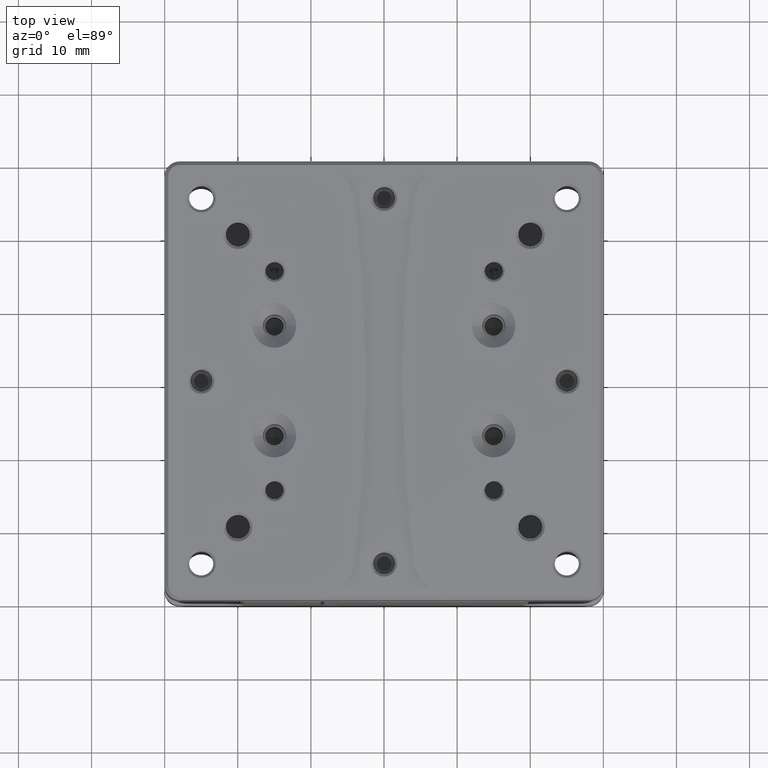
[diagram: clean part render]
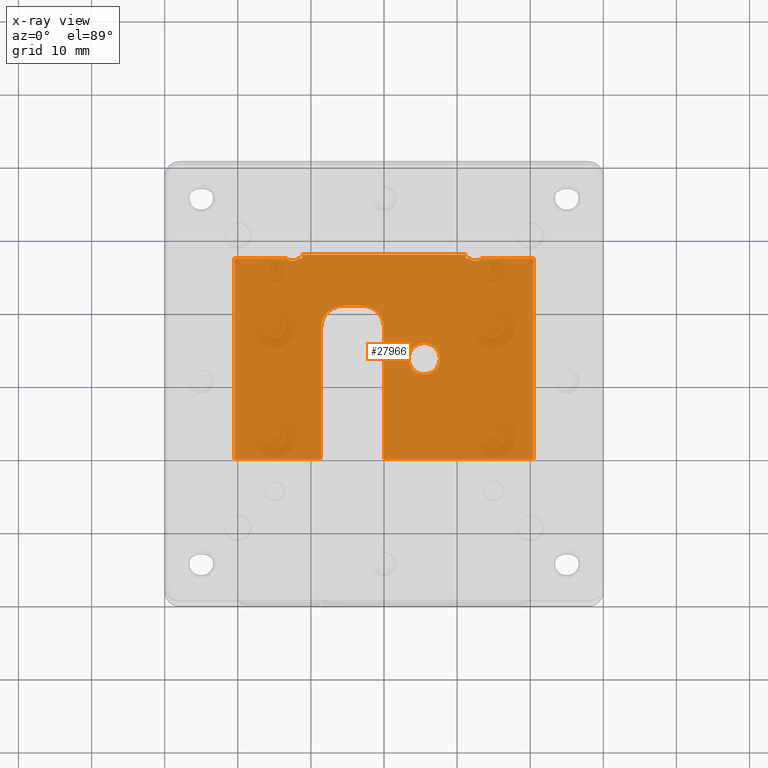
[diagram: x-ray — body ghosted, one internal face saturated and labeled with its STEP entity id]
A machine part, top view, then the same camera in x-ray: the body is ghosted and one INTERNAL B-rep face — a face not visible from any outside direction — is saturated and labeled: STEP entity #27966.
In plain terms, the highlighted planar face has unit normal (0, 0, 1).
Its self-contained STEP definition (entity closure, byte-faithful):
#202 = VERTEX_POINT ( 'NONE', #3311 ) ;
#1319 = VERTEX_POINT ( 'NONE', #31326 ) ;
#1616 = CIRCLE ( 'NONE', #3860, 1.250000000000002220 ) ;
#2000 = DIRECTION ( 'NONE',  ( -1.000000000000000000, 0.000000000000000000, 0.000000000000000000 ) ) ;
#2042 = VECTOR ( 'NONE', #24061, 1000.000000000000000 ) ;
#2183 = CARTESIAN_POINT ( 'NONE',  ( 12.50000000000000000, 18.39999999999999858, 0.05000000000000000278 ) ) ;
#2492 = LINE ( 'NONE', #34602, #3220 ) ;
#2694 = DIRECTION ( 'NONE',  ( 0.000000000000000000, -1.000000000000000000, 0.000000000000000000 ) ) ;
#2727 = CARTESIAN_POINT ( 'NONE',  ( 0.000000000000000000, -10.00000000000000000, 0.05000000000000000278 ) ) ;
#2833 = ORIENTED_EDGE ( 'NONE', *, *, #27133, .T. ) ;
#3220 = VECTOR ( 'NONE', #32641, 1000.000000000000000 ) ;
#3311 = CARTESIAN_POINT ( 'NONE',  ( 20.45456439427000106, 17.50000000000000000, 0.05000000000000000278 ) ) ;
#3348 = DIRECTION ( 'NONE',  ( 1.000000000000000000, 0.000000000000000000, 0.000000000000000000 ) ) ;
#3860 = AXIS2_PLACEMENT_3D ( 'NONE', #18830, #24122, #18314 ) ;
#3972 = LINE ( 'NONE', #8904, #5358 ) ;
#4125 = ORIENTED_EDGE ( 'NONE', *, *, #4710, .F. ) ;
#4218 = ORIENTED_EDGE ( 'NONE', *, *, #27868, .F. ) ;
#4306 = CARTESIAN_POINT ( 'NONE',  ( -11.20533679897999946, 18.00000000000000000, 0.05000000000000000278 ) ) ;
#4308 = ORIENTED_EDGE ( 'NONE', *, *, #6676, .T. ) ;
#4450 = CARTESIAN_POINT ( 'NONE',  ( 11.20533679897999946, 18.00000000000000000, 0.05000000000000000278 ) ) ;
#4710 = EDGE_CURVE ( 'NONE', #31947, #27770, #26141, .T. ) ;
#4799 = CARTESIAN_POINT ( 'NONE',  ( 20.45456439427000106, -10.00000000000000000, 0.05000000000000000278 ) ) ;
#5130 = EDGE_CURVE ( 'NONE', #33290, #12187, #9202, .T. ) ;
#5358 = VECTOR ( 'NONE', #8563, 1000.000000000000000 ) ;
#5444 = VERTEX_POINT ( 'NONE', #20287 ) ;
#5499 = CARTESIAN_POINT ( 'NONE',  ( 25.00000000000000000, -10.00000000000000000, 0.05000000000000000278 ) ) ;
#5727 = EDGE_CURVE ( 'NONE', #202, #7007, #3972, .T. ) ;
#5734 = VERTEX_POINT ( 'NONE', #22489 ) ;
#5861 = ORIENTED_EDGE ( 'NONE', *, *, #29692, .F. ) ;
#6250 = VERTEX_POINT ( 'NONE', #17342 ) ;
#6323 = CARTESIAN_POINT ( 'NONE',  ( -5.599999999999999645, 11.00000000000000000, 0.05000000000000000278 ) ) ;
#6445 = AXIS2_PLACEMENT_3D ( 'NONE', #28776, #15872, #10051 ) ;
#6676 = EDGE_CURVE ( 'NONE', #33290, #17107, #17302, .T. ) ;
#7007 = VERTEX_POINT ( 'NONE', #11767 ) ;
#7894 = VECTOR ( 'NONE', #31509, 1000.000000000000000 ) ;
#8035 = VERTEX_POINT ( 'NONE', #6323 ) ;
#8066 = EDGE_CURVE ( 'NONE', #5444, #12133, #22544, .T. ) ;
#8563 = DIRECTION ( 'NONE',  ( -1.000000000000000000, 0.000000000000000000, 0.000000000000000000 ) ) ;
#8664 = ORIENTED_EDGE ( 'NONE', *, *, #32987, .T. ) ;
#8720 = CIRCLE ( 'NONE', #31264, 1.250000000000002220 ) ;
#8786 = DIRECTION ( 'NONE',  ( -1.000000000000000000, 0.000000000000000000, 0.000000000000000000 ) ) ;
#8904 = CARTESIAN_POINT ( 'NONE',  ( 20.45456439427000106, 17.50000000000000000, 0.05000000000000000278 ) ) ;
#9003 = CARTESIAN_POINT ( 'NONE',  ( -3.000000000000000000, 11.00000000000000000, 0.05000000000000000278 ) ) ;
#9144 = DIRECTION ( 'NONE',  ( 0.000000000000000000, 0.000000000000000000, 1.000000000000000000 ) ) ;
#9202 = LINE ( 'NONE', #30906, #22077 ) ;
#9416 = VERTEX_POINT ( 'NONE', #9003 ) ;
#9638 = EDGE_CURVE ( 'NONE', #6250, #13404, #21654, .T. ) ;
#9673 = CARTESIAN_POINT ( 'NONE',  ( 11.20533679897999946, 17.50000000000000000, 0.05000000000000000278 ) ) ;
#10051 = DIRECTION ( 'NONE',  ( -1.000000000000000000, 0.000000000000000000, 0.000000000000000000 ) ) ;
#10058 = ORIENTED_EDGE ( 'NONE', *, *, #26471, .F. ) ;
#10154 = LINE ( 'NONE', #24264, #18889 ) ;
#10799 = PLANE ( 'NONE',  #31334 ) ;
#10997 = LINE ( 'NONE', #2727, #2042 ) ;
#11352 = EDGE_CURVE ( 'NONE', #9416, #8035, #23067, .T. ) ;
#11363 = ORIENTED_EDGE ( 'NONE', *, *, #26562, .T. ) ;
#11767 = CARTESIAN_POINT ( 'NONE',  ( 13.36746757863999946, 17.50000000000000000, 0.05000000000000000278 ) ) ;
#11781 = CARTESIAN_POINT ( 'NONE',  ( 20.45456439427000106, -10.00000000000000000, 0.05000000000000000278 ) ) ;
#11854 = DIRECTION ( 'NONE',  ( 0.000000000000000000, 1.000000000000000000, 0.000000000000000000 ) ) ;
#12133 = VERTEX_POINT ( 'NONE', #17189 ) ;
#12137 = CARTESIAN_POINT ( 'NONE',  ( -11.20533679897999946, 17.50000000000000000, 0.05000000000000000278 ) ) ;
#12187 = VERTEX_POINT ( 'NONE', #4306 ) ;
#12284 = CARTESIAN_POINT ( 'NONE',  ( 7.649999999999999467, 3.750000000000000000, 0.05000000000000000278 ) ) ;
#12381 = LINE ( 'NONE', #4450, #19236 ) ;
#13067 = ORIENTED_EDGE ( 'NONE', *, *, #22592, .T. ) ;
#13264 = CARTESIAN_POINT ( 'NONE',  ( 11.20533679897999946, 18.00000000000000000, 0.05000000000000000278 ) ) ;
#13404 = VERTEX_POINT ( 'NONE', #12284 ) ;
#13528 = CARTESIAN_POINT ( 'NONE',  ( -20.45456439427000106, 17.50000000000000000, 0.05000000000000000278 ) ) ;
#14353 = ORIENTED_EDGE ( 'NONE', *, *, #30066, .T. ) ;
#14467 = EDGE_CURVE ( 'NONE', #202, #31947, #17944, .T. ) ;
#15212 = DIRECTION ( 'NONE',  ( -1.000000000000000000, 0.000000000000000000, 0.000000000000000000 ) ) ;
#15268 = ORIENTED_EDGE ( 'NONE', *, *, #9638, .T. ) ;
#15744 = FACE_BOUND ( 'NONE', #19308, .T. ) ;
#15872 = DIRECTION ( 'NONE',  ( 0.000000000000000000, 0.000000000000000000, -1.000000000000000000 ) ) ;
#16082 = VECTOR ( 'NONE', #25668, 1000.000000000000000 ) ;
#16105 = ORIENTED_EDGE ( 'NONE', *, *, #8066, .F. ) ;
#16194 = EDGE_CURVE ( 'NONE', #27770, #34075, #10997, .T. ) ;
#16269 = VECTOR ( 'NONE', #2000, 1000.000000000000000 ) ;
#16804 = ORIENTED_EDGE ( 'NONE', *, *, #34745, .T. ) ;
#16824 = CARTESIAN_POINT ( 'NONE',  ( 5.500000000000000000, 3.750000000000000000, 0.05000000000000000278 ) ) ;
#17024 = LINE ( 'NONE', #33243, #29346 ) ;
#17107 = VERTEX_POINT ( 'NONE', #24740 ) ;
#17189 = CARTESIAN_POINT ( 'NONE',  ( -20.45456439427000106, -10.00000000000000000, 0.05000000000000000278 ) ) ;
#17302 = LINE ( 'NONE', #31389, #24496 ) ;
#17342 = CARTESIAN_POINT ( 'NONE',  ( 3.350000000000000089, 3.750000000000000000, 0.05000000000000000278 ) ) ;
#17360 = CIRCLE ( 'NONE', #20152, 3.000000000000000000 ) ;
#17907 = AXIS2_PLACEMENT_3D ( 'NONE', #16824, #25094, #19297 ) ;
#17944 = LINE ( 'NONE', #18295, #7894 ) ;
#18295 = CARTESIAN_POINT ( 'NONE',  ( 20.45456439427000106, 17.50000000000000000, 0.05000000000000000278 ) ) ;
#18314 = DIRECTION ( 'NONE',  ( 0.6939740629158990259, -0.7199999999999998623, 0.000000000000000000 ) ) ;
#18491 = EDGE_CURVE ( 'NONE', #1319, #12187, #12381, .T. ) ;
#18830 = CARTESIAN_POINT ( 'NONE',  ( -12.50000000000000000, 18.39999999999999858, 0.05000000000000000278 ) ) ;
#18889 = VECTOR ( 'NONE', #20932, 1000.000000000000000 ) ;
#19236 = VECTOR ( 'NONE', #15212, 1000.000000000000000 ) ;
#19297 = DIRECTION ( 'NONE',  ( 1.000000000000000000, 0.000000000000000000, 0.000000000000000000 ) ) ;
#19308 = EDGE_LOOP ( 'NONE', ( #15268, #13067 ) ) ;
#19415 = VECTOR ( 'NONE', #2694, 1000.000000000000000 ) ;
#19439 = ORIENTED_EDGE ( 'NONE', *, *, #32277, .T. ) ;
#19488 = ORIENTED_EDGE ( 'NONE', *, *, #11352, .F. ) ;
#19964 = ORIENTED_EDGE ( 'NONE', *, *, #5727, .T. ) ;
#20152 = AXIS2_PLACEMENT_3D ( 'NONE', #25028, #9144, #3348 ) ;
#20287 = CARTESIAN_POINT ( 'NONE',  ( -8.599999999999999645, -10.00000000000000000, 0.05000000000000000278 ) ) ;
#20397 = CARTESIAN_POINT ( 'NONE',  ( 11.63253242136000054, 17.50000000000000000, 0.05000000000000000278 ) ) ;
#20812 = DIRECTION ( 'NONE',  ( 0.000000000000000000, 1.000000000000000000, 0.000000000000000000 ) ) ;
#20932 = DIRECTION ( 'NONE',  ( 0.000000000000000000, 1.000000000000000000, 0.000000000000000000 ) ) ;
#21038 = DIRECTION ( 'NONE',  ( 1.000000000000000000, 0.000000000000000000, 0.000000000000000000 ) ) ;
#21654 = CIRCLE ( 'NONE', #6445, 2.149999999999999911 ) ;
#21850 = CARTESIAN_POINT ( 'NONE',  ( -8.599999999999999645, -10.00000000000000000, 0.05000000000000000278 ) ) ;
#22077 = VECTOR ( 'NONE', #11854, 1000.000000000000000 ) ;
#22489 = CARTESIAN_POINT ( 'NONE',  ( 11.63253242136000054, 17.50000000000000000, 0.05000000000000000278 ) ) ;
#22544 = LINE ( 'NONE', #21850, #31082 ) ;
#22592 = EDGE_CURVE ( 'NONE', #13404, #6250, #30319, .T. ) ;
#23067 = LINE ( 'NONE', #28912, #28330 ) ;
#23682 = LINE ( 'NONE', #13264, #19415 ) ;
#24061 = DIRECTION ( 'NONE',  ( 0.000000000000000000, 1.000000000000000000, 0.000000000000000000 ) ) ;
#24122 = DIRECTION ( 'NONE',  ( 0.000000000000000000, 0.000000000000000000, -1.000000000000000000 ) ) ;
#24264 = CARTESIAN_POINT ( 'NONE',  ( -8.599999999999999645, -10.00000000000000000, 0.05000000000000000278 ) ) ;
#24357 = VERTEX_POINT ( 'NONE', #28185 ) ;
#24496 = VECTOR ( 'NONE', #30872, 1000.000000000000000 ) ;
#24740 = CARTESIAN_POINT ( 'NONE',  ( -11.63253242136000054, 17.50000000000000000, 0.05000000000000000278 ) ) ;
#24757 = EDGE_LOOP ( 'NONE', ( #16105, #16804, #4218, #19488, #5861, #27608, #4125, #27333, #19964, #11363, #2833, #10058, #30552, #26660, #4308, #14353, #8664, #19439 ) ) ;
#25028 = CARTESIAN_POINT ( 'NONE',  ( -3.000000000000000000, 8.000000000000000000, 0.05000000000000000278 ) ) ;
#25038 = CARTESIAN_POINT ( 'NONE',  ( 0.000000000000000000, 8.000000000000000000, 0.05000000000000000278 ) ) ;
#25094 = DIRECTION ( 'NONE',  ( 0.000000000000000000, 0.000000000000000000, -1.000000000000000000 ) ) ;
#25128 = VERTEX_POINT ( 'NONE', #28948 ) ;
#25668 = DIRECTION ( 'NONE',  ( -1.000000000000000000, 0.000000000000000000, 0.000000000000000000 ) ) ;
#25843 = LINE ( 'NONE', #20397, #16082 ) ;
#26141 = LINE ( 'NONE', #4799, #16269 ) ;
#26159 = CARTESIAN_POINT ( 'NONE',  ( 0.000000000000000000, -10.00000000000000000, 0.05000000000000000278 ) ) ;
#26284 = CIRCLE ( 'NONE', #31910, 2.999999999999999112 ) ;
#26471 = EDGE_CURVE ( 'NONE', #1319, #29797, #23682, .T. ) ;
#26498 = DIRECTION ( 'NONE',  ( 0.6939740629158990259, -0.7199999999999998623, 0.000000000000000000 ) ) ;
#26562 = EDGE_CURVE ( 'NONE', #7007, #5734, #8720, .T. ) ;
#26660 = ORIENTED_EDGE ( 'NONE', *, *, #5130, .F. ) ;
#26945 = VERTEX_POINT ( 'NONE', #13528 ) ;
#27133 = EDGE_CURVE ( 'NONE', #5734, #29797, #25843, .T. ) ;
#27333 = ORIENTED_EDGE ( 'NONE', *, *, #14467, .F. ) ;
#27596 = DIRECTION ( 'NONE',  ( 0.000000000000000000, -1.000000000000000000, 0.000000000000000000 ) ) ;
#27608 = ORIENTED_EDGE ( 'NONE', *, *, #16194, .F. ) ;
#27770 = VERTEX_POINT ( 'NONE', #26159 ) ;
#27868 = EDGE_CURVE ( 'NONE', #8035, #25128, #26284, .T. ) ;
#27966 = ADVANCED_FACE ( 'NONE', ( #15744, #32503 ), #10799, .T. ) ;
#28185 = CARTESIAN_POINT ( 'NONE',  ( -13.36746757863999946, 17.50000000000000000, 0.05000000000000000278 ) ) ;
#28330 = VECTOR ( 'NONE', #34368, 1000.000000000000000 ) ;
#28776 = CARTESIAN_POINT ( 'NONE',  ( 5.500000000000000000, 3.750000000000000000, 0.05000000000000000278 ) ) ;
#28912 = CARTESIAN_POINT ( 'NONE',  ( -3.000000000000000000, 11.00000000000000000, 0.05000000000000000278 ) ) ;
#28948 = CARTESIAN_POINT ( 'NONE',  ( -8.599999999999999645, 8.000000000000000000, 0.05000000000000000278 ) ) ;
#29346 = VECTOR ( 'NONE', #27596, 1000.000000000000000 ) ;
#29692 = EDGE_CURVE ( 'NONE', #34075, #9416, #17360, .T. ) ;
#29797 = VERTEX_POINT ( 'NONE', #9673 ) ;
#30066 = EDGE_CURVE ( 'NONE', #17107, #24357, #1616, .T. ) ;
#30319 = CIRCLE ( 'NONE', #17907, 2.149999999999999911 ) ;
#30552 = ORIENTED_EDGE ( 'NONE', *, *, #18491, .T. ) ;
#30872 = DIRECTION ( 'NONE',  ( -1.000000000000000000, 0.000000000000000000, 0.000000000000000000 ) ) ;
#30906 = CARTESIAN_POINT ( 'NONE',  ( -11.20533679897999946, 17.50000000000000000, 0.05000000000000000278 ) ) ;
#31082 = VECTOR ( 'NONE', #8786, 1000.000000000000000 ) ;
#31217 = CARTESIAN_POINT ( 'NONE',  ( -5.599999999999999645, 8.000000000000000000, 0.05000000000000000278 ) ) ;
#31264 = AXIS2_PLACEMENT_3D ( 'NONE', #2183, #31445, #26498 ) ;
#31326 = CARTESIAN_POINT ( 'NONE',  ( 11.20533679897999946, 18.00000000000000000, 0.05000000000000000278 ) ) ;
#31334 = AXIS2_PLACEMENT_3D ( 'NONE', #5499, #31978, #21038 ) ;
#31389 = CARTESIAN_POINT ( 'NONE',  ( -11.20533679897999946, 17.50000000000000000, 0.05000000000000000278 ) ) ;
#31445 = DIRECTION ( 'NONE',  ( 0.000000000000000000, 0.000000000000000000, -1.000000000000000000 ) ) ;
#31509 = DIRECTION ( 'NONE',  ( 0.000000000000000000, -1.000000000000000000, 0.000000000000000000 ) ) ;
#31910 = AXIS2_PLACEMENT_3D ( 'NONE', #31217, #34059, #20812 ) ;
#31947 = VERTEX_POINT ( 'NONE', #11781 ) ;
#31978 = DIRECTION ( 'NONE',  ( 0.000000000000000000, 0.000000000000000000, 1.000000000000000000 ) ) ;
#32277 = EDGE_CURVE ( 'NONE', #26945, #12133, #17024, .T. ) ;
#32503 = FACE_OUTER_BOUND ( 'NONE', #24757, .T. ) ;
#32641 = DIRECTION ( 'NONE',  ( -1.000000000000000000, 0.000000000000000000, 0.000000000000000000 ) ) ;
#32987 = EDGE_CURVE ( 'NONE', #24357, #26945, #2492, .T. ) ;
#33243 = CARTESIAN_POINT ( 'NONE',  ( -20.45456439427000106, 17.50000000000000000, 0.05000000000000000278 ) ) ;
#33290 = VERTEX_POINT ( 'NONE', #12137 ) ;
#34059 = DIRECTION ( 'NONE',  ( 0.000000000000000000, 0.000000000000000000, 1.000000000000000000 ) ) ;
#34075 = VERTEX_POINT ( 'NONE', #25038 ) ;
#34368 = DIRECTION ( 'NONE',  ( -1.000000000000000000, 0.000000000000000000, 0.000000000000000000 ) ) ;
#34602 = CARTESIAN_POINT ( 'NONE',  ( -13.36746757863999946, 17.50000000000000000, 0.05000000000000000278 ) ) ;
#34745 = EDGE_CURVE ( 'NONE', #5444, #25128, #10154, .T. ) ;